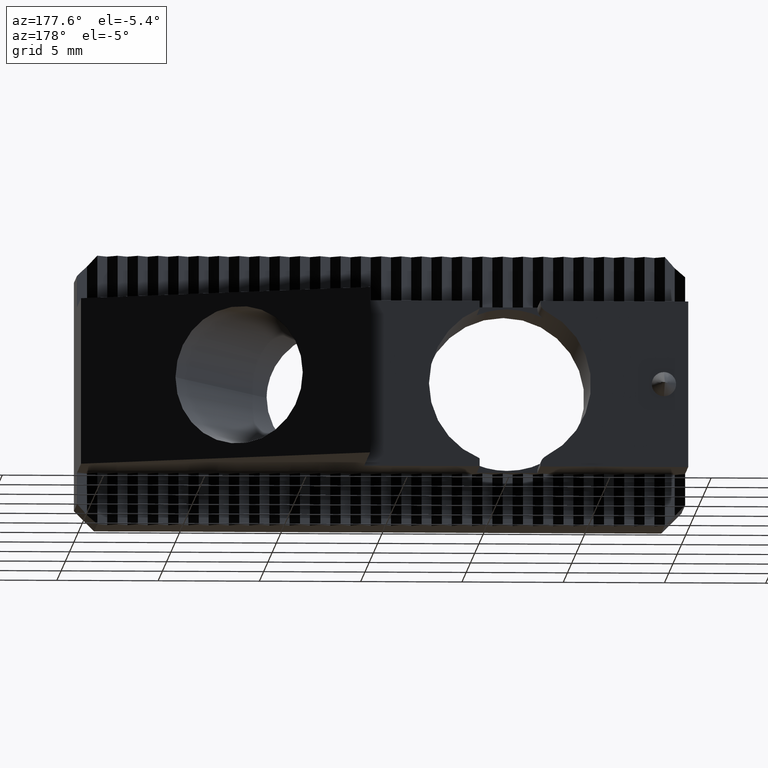
[diagram: clean part render]
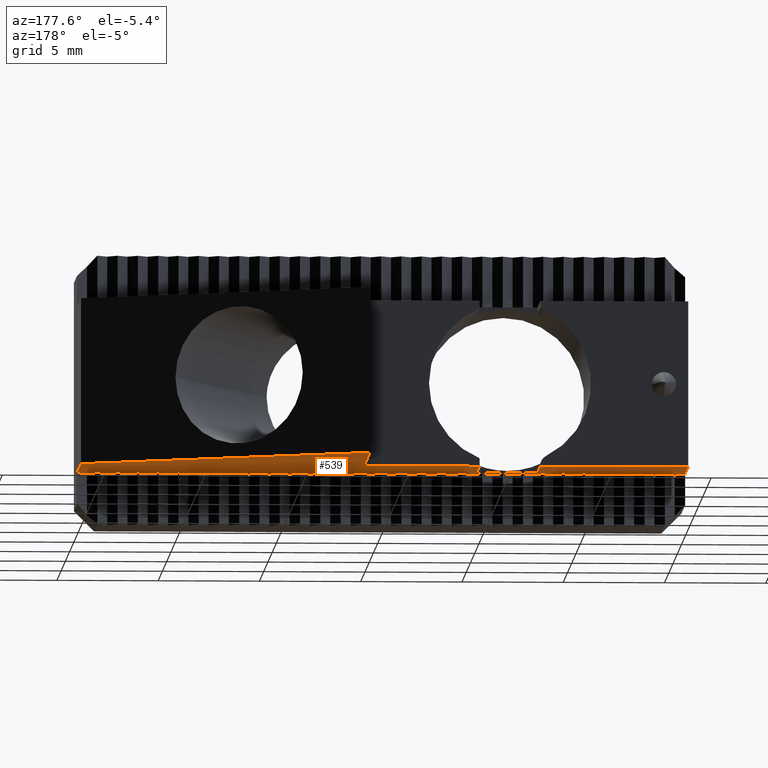
[diagram: same view with one face highlighted and labeled with its STEP entity id]
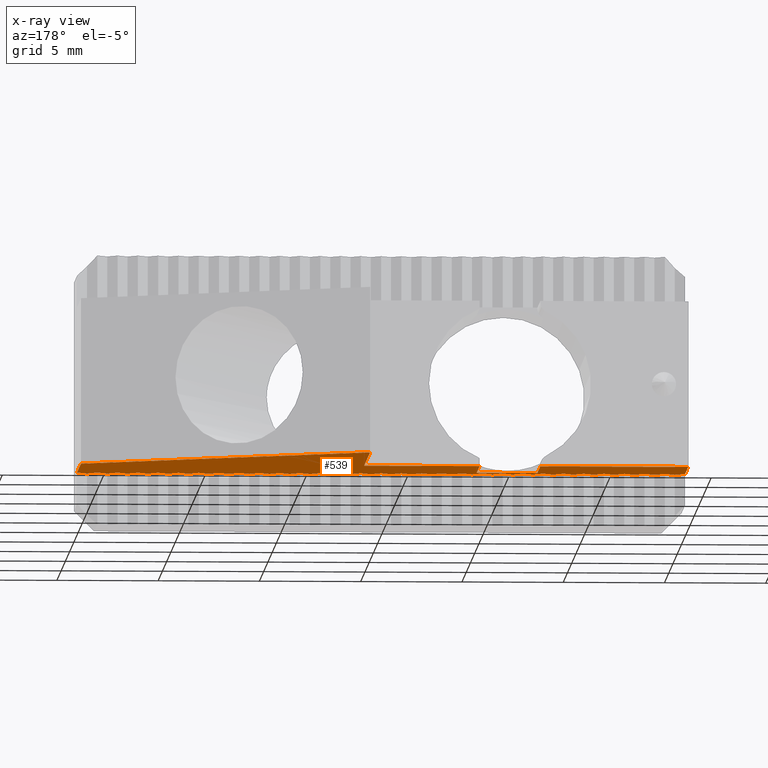
[diagram: x-ray of the same camera — body ghosted, the highlighted face saturated]
A machine part, auxiliary view. The second image highlights one B-rep face of the part: STEP entity #539.
The next image is the same camera in x-ray: the body ghosted, the highlighted face saturated — about 0% of this face is hidden behind the body in this view.
In plain terms, the highlighted planar face has unit normal (0, 0, 1).
Its self-contained STEP definition (entity closure, byte-faithful):
#51 = DIRECTION ( 'NONE',  ( -1.000000000000000000, -1.084202172485504400E-016, -0.0000000000000000000 ) ) ;
#52 = CARTESIAN_POINT ( 'NONE',  ( 16.00000000000000000, 8.000000000000001800, -4.100000000000001400 ) ) ;
#196 = VERTEX_POINT ( 'NONE', #351 ) ;
#197 = VERTEX_POINT ( 'NONE', #352 ) ;
#198 = VERTEX_POINT ( 'NONE', #356 ) ;
#223 = VERTEX_POINT ( 'NONE', #381 ) ;
#238 = VERTEX_POINT ( 'NONE', #396 ) ;
#249 = VERTEX_POINT ( 'NONE', #407 ) ;
#252 = VERTEX_POINT ( 'NONE', #410 ) ;
#253 = VERTEX_POINT ( 'NONE', #411 ) ;
#351 = CARTESIAN_POINT ( 'NONE',  ( 10.29999999999999700, 8.000000000000001800, -4.100000000000001400 ) ) ;
#352 = CARTESIAN_POINT ( 'NONE',  ( 16.00000000000000000, 15.00000000000000000, -4.100000000000001400 ) ) ;
#356 = CARTESIAN_POINT ( 'NONE',  ( 16.00000000000000000, 8.000000000000001800, -4.100000000000001400 ) ) ;
#381 = CARTESIAN_POINT ( 'NONE',  ( 7.299999999999998000, 8.000000000000000000, -4.100000000000001400 ) ) ;
#396 = CARTESIAN_POINT ( 'NONE',  ( 0.0000000000000000000, 8.000000000000000000, -4.100000000000001400 ) ) ;
#407 = CARTESIAN_POINT ( 'NONE',  ( 30.00000000000000000, 3.799999999999999800, -4.100000000000001400 ) ) ;
#410 = CARTESIAN_POINT ( 'NONE',  ( 30.00000000000000000, 8.471692785830127200, -4.100000000000001400 ) ) ;
#411 = CARTESIAN_POINT ( 'NONE',  ( 0.0000000000000000000, 4.299999999999999800, -4.100000000000001400 ) ) ;
#421 = EDGE_CURVE ( 'NONE', #223, #238, #2176, .T. ) ;
#539 = ADVANCED_FACE ( 'NONE', ( #2586 ), #3051, .F. ) ;
#605 = EDGE_LOOP ( 'NONE', ( #1193, #1194, #1195, #1196, #1197, #1198, #1199, #1200, #1201, #1202, #1203, #1204, #1205, #1206, #1207, #1208, #1209, #1210, #1211, #1212, #1213, #1214, #1215, #1216, #1217, #1218, #1219, #1220, #1221, #1222, #1223, #1224, #1225, #1226, #1227, #1228, #1229, #1230, #1231, #1232, #1233, #1234, #1235, #1236, #1237, #1238, #1239, #1240, #1241, #1242, #1243, #1244, #1245, #1246, #1247, #1248, #1249, #1250, #1251, #1252, #1253, #1254, #1255, #1256, #1257, #1258, #1259, #1260, #1261, #1262 ) ) ;
#699 = VERTEX_POINT ( 'NONE', #3257 ) ;
#709 = VERTEX_POINT ( 'NONE', #3267 ) ;
#769 = VERTEX_POINT ( 'NONE', #3327 ) ;
#771 = VERTEX_POINT ( 'NONE', #3329 ) ;
#774 = VERTEX_POINT ( 'NONE', #3332 ) ;
#775 = VERTEX_POINT ( 'NONE', #3333 ) ;
#776 = VERTEX_POINT ( 'NONE', #3334 ) ;
#777 = VERTEX_POINT ( 'NONE', #3335 ) ;
#778 = VERTEX_POINT ( 'NONE', #3336 ) ;
#779 = VERTEX_POINT ( 'NONE', #3337 ) ;
#780 = VERTEX_POINT ( 'NONE', #3338 ) ;
#781 = VERTEX_POINT ( 'NONE', #3339 ) ;
#782 = VERTEX_POINT ( 'NONE', #3340 ) ;
#783 = VERTEX_POINT ( 'NONE', #3341 ) ;
#784 = VERTEX_POINT ( 'NONE', #3342 ) ;
#785 = VERTEX_POINT ( 'NONE', #3343 ) ;
#786 = VERTEX_POINT ( 'NONE', #3344 ) ;
#787 = VERTEX_POINT ( 'NONE', #3345 ) ;
#788 = VERTEX_POINT ( 'NONE', #3346 ) ;
#789 = VERTEX_POINT ( 'NONE', #3347 ) ;
#790 = VERTEX_POINT ( 'NONE', #3348 ) ;
#791 = VERTEX_POINT ( 'NONE', #3349 ) ;
#792 = VERTEX_POINT ( 'NONE', #3350 ) ;
#793 = VERTEX_POINT ( 'NONE', #3351 ) ;
#794 = VERTEX_POINT ( 'NONE', #3352 ) ;
#795 = VERTEX_POINT ( 'NONE', #3353 ) ;
#796 = VERTEX_POINT ( 'NONE', #3354 ) ;
#797 = VERTEX_POINT ( 'NONE', #3355 ) ;
#798 = VERTEX_POINT ( 'NONE', #3356 ) ;
#799 = VERTEX_POINT ( 'NONE', #3357 ) ;
#800 = VERTEX_POINT ( 'NONE', #3358 ) ;
#801 = VERTEX_POINT ( 'NONE', #3359 ) ;
#802 = VERTEX_POINT ( 'NONE', #3360 ) ;
#803 = VERTEX_POINT ( 'NONE', #3361 ) ;
#804 = VERTEX_POINT ( 'NONE', #3362 ) ;
#805 = VERTEX_POINT ( 'NONE', #3363 ) ;
#806 = VERTEX_POINT ( 'NONE', #3364 ) ;
#807 = VERTEX_POINT ( 'NONE', #3365 ) ;
#808 = VERTEX_POINT ( 'NONE', #3366 ) ;
#809 = VERTEX_POINT ( 'NONE', #3367 ) ;
#810 = VERTEX_POINT ( 'NONE', #3368 ) ;
#811 = VERTEX_POINT ( 'NONE', #3369 ) ;
#812 = VERTEX_POINT ( 'NONE', #3370 ) ;
#813 = VERTEX_POINT ( 'NONE', #3371 ) ;
#814 = VERTEX_POINT ( 'NONE', #3372 ) ;
#815 = VERTEX_POINT ( 'NONE', #3373 ) ;
#816 = VERTEX_POINT ( 'NONE', #3374 ) ;
#817 = VERTEX_POINT ( 'NONE', #3375 ) ;
#818 = VERTEX_POINT ( 'NONE', #3376 ) ;
#819 = VERTEX_POINT ( 'NONE', #3377 ) ;
#820 = VERTEX_POINT ( 'NONE', #3378 ) ;
#821 = VERTEX_POINT ( 'NONE', #3379 ) ;
#822 = VERTEX_POINT ( 'NONE', #3380 ) ;
#823 = VERTEX_POINT ( 'NONE', #3381 ) ;
#824 = VERTEX_POINT ( 'NONE', #3382 ) ;
#825 = VERTEX_POINT ( 'NONE', #3383 ) ;
#826 = VERTEX_POINT ( 'NONE', #3384 ) ;
#827 = VERTEX_POINT ( 'NONE', #3385 ) ;
#834 = VERTEX_POINT ( 'NONE', #3392 ) ;
#835 = VERTEX_POINT ( 'NONE', #3393 ) ;
#836 = VERTEX_POINT ( 'NONE', #3394 ) ;
#837 = VERTEX_POINT ( 'NONE', #3395 ) ;
#889 = EDGE_CURVE ( 'NONE', #249, #252, #2645, .T. ) ;
#900 = EDGE_CURVE ( 'NONE', #238, #253, #2671, .T. ) ;
#969 = EDGE_CURVE ( 'NONE', #252, #197, #3732, .T. ) ;
#972 = EDGE_CURVE ( 'NONE', #197, #198, #3737, .T. ) ;
#975 = EDGE_CURVE ( 'NONE', #198, #196, #3743, .T. ) ;
#1193 = ORIENTED_EDGE ( 'NONE', *, *, #421, .F. ) ;
#1194 = ORIENTED_EDGE ( 'NONE', *, *, #1400, .F. ) ;
#1195 = ORIENTED_EDGE ( 'NONE', *, *, #1401, .F. ) ;
#1196 = ORIENTED_EDGE ( 'NONE', *, *, #1402, .T. ) ;
#1197 = ORIENTED_EDGE ( 'NONE', *, *, #975, .F. ) ;
#1198 = ORIENTED_EDGE ( 'NONE', *, *, #972, .F. ) ;
#1199 = ORIENTED_EDGE ( 'NONE', *, *, #969, .F. ) ;
#1200 = ORIENTED_EDGE ( 'NONE', *, *, #889, .F. ) ;
#1201 = ORIENTED_EDGE ( 'NONE', *, *, #1399, .F. ) ;
#1202 = ORIENTED_EDGE ( 'NONE', *, *, #1403, .T. ) ;
#1203 = ORIENTED_EDGE ( 'NONE', *, *, #1404, .T. ) ;
#1204 = ORIENTED_EDGE ( 'NONE', *, *, #1405, .T. ) ;
#1205 = ORIENTED_EDGE ( 'NONE', *, *, #1406, .T. ) ;
#1206 = ORIENTED_EDGE ( 'NONE', *, *, #1407, .T. ) ;
#1207 = ORIENTED_EDGE ( 'NONE', *, *, #1408, .T. ) ;
#1208 = ORIENTED_EDGE ( 'NONE', *, *, #1409, .T. ) ;
#1209 = ORIENTED_EDGE ( 'NONE', *, *, #1410, .T. ) ;
#1210 = ORIENTED_EDGE ( 'NONE', *, *, #1411, .T. ) ;
#1211 = ORIENTED_EDGE ( 'NONE', *, *, #1412, .T. ) ;
#1212 = ORIENTED_EDGE ( 'NONE', *, *, #1413, .T. ) ;
#1213 = ORIENTED_EDGE ( 'NONE', *, *, #1414, .T. ) ;
#1214 = ORIENTED_EDGE ( 'NONE', *, *, #1415, .T. ) ;
#1215 = ORIENTED_EDGE ( 'NONE', *, *, #1416, .T. ) ;
#1216 = ORIENTED_EDGE ( 'NONE', *, *, #1417, .T. ) ;
#1217 = ORIENTED_EDGE ( 'NONE', *, *, #1418, .T. ) ;
#1218 = ORIENTED_EDGE ( 'NONE', *, *, #1419, .T. ) ;
#1219 = ORIENTED_EDGE ( 'NONE', *, *, #1420, .T. ) ;
#1220 = ORIENTED_EDGE ( 'NONE', *, *, #1421, .T. ) ;
#1221 = ORIENTED_EDGE ( 'NONE', *, *, #1422, .T. ) ;
#1222 = ORIENTED_EDGE ( 'NONE', *, *, #1423, .T. ) ;
#1223 = ORIENTED_EDGE ( 'NONE', *, *, #1424, .T. ) ;
#1224 = ORIENTED_EDGE ( 'NONE', *, *, #1425, .T. ) ;
#1225 = ORIENTED_EDGE ( 'NONE', *, *, #1426, .T. ) ;
#1226 = ORIENTED_EDGE ( 'NONE', *, *, #1427, .T. ) ;
#1227 = ORIENTED_EDGE ( 'NONE', *, *, #1428, .T. ) ;
#1228 = ORIENTED_EDGE ( 'NONE', *, *, #1429, .T. ) ;
#1229 = ORIENTED_EDGE ( 'NONE', *, *, #1430, .T. ) ;
#1230 = ORIENTED_EDGE ( 'NONE', *, *, #1431, .T. ) ;
#1231 = ORIENTED_EDGE ( 'NONE', *, *, #1432, .T. ) ;
#1232 = ORIENTED_EDGE ( 'NONE', *, *, #1433, .T. ) ;
#1233 = ORIENTED_EDGE ( 'NONE', *, *, #1434, .T. ) ;
#1234 = ORIENTED_EDGE ( 'NONE', *, *, #1435, .T. ) ;
#1235 = ORIENTED_EDGE ( 'NONE', *, *, #1436, .T. ) ;
#1236 = ORIENTED_EDGE ( 'NONE', *, *, #1437, .T. ) ;
#1237 = ORIENTED_EDGE ( 'NONE', *, *, #1438, .T. ) ;
#1238 = ORIENTED_EDGE ( 'NONE', *, *, #1439, .T. ) ;
#1239 = ORIENTED_EDGE ( 'NONE', *, *, #1440, .T. ) ;
#1240 = ORIENTED_EDGE ( 'NONE', *, *, #1441, .T. ) ;
#1241 = ORIENTED_EDGE ( 'NONE', *, *, #1442, .T. ) ;
#1242 = ORIENTED_EDGE ( 'NONE', *, *, #1443, .T. ) ;
#1243 = ORIENTED_EDGE ( 'NONE', *, *, #1444, .T. ) ;
#1244 = ORIENTED_EDGE ( 'NONE', *, *, #1445, .T. ) ;
#1245 = ORIENTED_EDGE ( 'NONE', *, *, #1446, .T. ) ;
#1246 = ORIENTED_EDGE ( 'NONE', *, *, #1447, .T. ) ;
#1247 = ORIENTED_EDGE ( 'NONE', *, *, #1448, .T. ) ;
#1248 = ORIENTED_EDGE ( 'NONE', *, *, #1449, .T. ) ;
#1249 = ORIENTED_EDGE ( 'NONE', *, *, #1450, .T. ) ;
#1250 = ORIENTED_EDGE ( 'NONE', *, *, #1451, .T. ) ;
#1251 = ORIENTED_EDGE ( 'NONE', *, *, #1452, .T. ) ;
#1252 = ORIENTED_EDGE ( 'NONE', *, *, #1453, .T. ) ;
#1253 = ORIENTED_EDGE ( 'NONE', *, *, #1454, .T. ) ;
#1254 = ORIENTED_EDGE ( 'NONE', *, *, #1455, .T. ) ;
#1255 = ORIENTED_EDGE ( 'NONE', *, *, #1456, .T. ) ;
#1256 = ORIENTED_EDGE ( 'NONE', *, *, #1457, .T. ) ;
#1257 = ORIENTED_EDGE ( 'NONE', *, *, #1458, .T. ) ;
#1258 = ORIENTED_EDGE ( 'NONE', *, *, #1459, .T. ) ;
#1259 = ORIENTED_EDGE ( 'NONE', *, *, #1460, .T. ) ;
#1260 = ORIENTED_EDGE ( 'NONE', *, *, #1461, .T. ) ;
#1261 = ORIENTED_EDGE ( 'NONE', *, *, #1462, .T. ) ;
#1262 = ORIENTED_EDGE ( 'NONE', *, *, #900, .F. ) ;
#1399 = EDGE_CURVE ( 'NONE', #709, #249, #4459, .T. ) ;
#1400 = EDGE_CURVE ( 'NONE', #699, #223, #4462, .T. ) ;
#1401 = EDGE_CURVE ( 'NONE', #771, #699, #4461, .T. ) ;
#1402 = EDGE_CURVE ( 'NONE', #771, #196, #4464, .T. ) ;
#1403 = EDGE_CURVE ( 'NONE', #709, #769, #4469, .T. ) ;
#1404 = EDGE_CURVE ( 'NONE', #769, #774, #4468, .T. ) ;
#1405 = EDGE_CURVE ( 'NONE', #774, #775, #4471, .T. ) ;
#1406 = EDGE_CURVE ( 'NONE', #775, #776, #4473, .T. ) ;
#1407 = EDGE_CURVE ( 'NONE', #776, #777, #4475, .T. ) ;
#1408 = EDGE_CURVE ( 'NONE', #777, #778, #4477, .T. ) ;
#1409 = EDGE_CURVE ( 'NONE', #778, #779, #4479, .T. ) ;
#1410 = EDGE_CURVE ( 'NONE', #779, #780, #4481, .T. ) ;
#1411 = EDGE_CURVE ( 'NONE', #780, #781, #4483, .T. ) ;
#1412 = EDGE_CURVE ( 'NONE', #781, #782, #4485, .T. ) ;
#1413 = EDGE_CURVE ( 'NONE', #782, #783, #4487, .T. ) ;
#1414 = EDGE_CURVE ( 'NONE', #783, #784, #4489, .T. ) ;
#1415 = EDGE_CURVE ( 'NONE', #784, #785, #4491, .T. ) ;
#1416 = EDGE_CURVE ( 'NONE', #785, #786, #4493, .T. ) ;
#1417 = EDGE_CURVE ( 'NONE', #786, #787, #4495, .T. ) ;
#1418 = EDGE_CURVE ( 'NONE', #787, #788, #4497, .T. ) ;
#1419 = EDGE_CURVE ( 'NONE', #788, #789, #4499, .T. ) ;
#1420 = EDGE_CURVE ( 'NONE', #789, #790, #4501, .T. ) ;
#1421 = EDGE_CURVE ( 'NONE', #790, #791, #4503, .T. ) ;
#1422 = EDGE_CURVE ( 'NONE', #791, #792, #4505, .T. ) ;
#1423 = EDGE_CURVE ( 'NONE', #792, #793, #4507, .T. ) ;
#1424 = EDGE_CURVE ( 'NONE', #793, #794, #4509, .T. ) ;
#1425 = EDGE_CURVE ( 'NONE', #794, #795, #4511, .T. ) ;
#1426 = EDGE_CURVE ( 'NONE', #795, #796, #4513, .T. ) ;
#1427 = EDGE_CURVE ( 'NONE', #796, #797, #4515, .T. ) ;
#1428 = EDGE_CURVE ( 'NONE', #797, #835, #4517, .T. ) ;
#1429 = EDGE_CURVE ( 'NONE', #835, #834, #4519, .T. ) ;
#1430 = EDGE_CURVE ( 'NONE', #834, #798, #4521, .T. ) ;
#1431 = EDGE_CURVE ( 'NONE', #798, #799, #4523, .T. ) ;
#1432 = EDGE_CURVE ( 'NONE', #799, #837, #4525, .T. ) ;
#1433 = EDGE_CURVE ( 'NONE', #837, #836, #4527, .T. ) ;
#1434 = EDGE_CURVE ( 'NONE', #836, #800, #4529, .T. ) ;
#1435 = EDGE_CURVE ( 'NONE', #800, #801, #4531, .T. ) ;
#1436 = EDGE_CURVE ( 'NONE', #801, #802, #4533, .T. ) ;
#1437 = EDGE_CURVE ( 'NONE', #802, #803, #4535, .T. ) ;
#1438 = EDGE_CURVE ( 'NONE', #803, #804, #4537, .T. ) ;
#1439 = EDGE_CURVE ( 'NONE', #804, #805, #4539, .T. ) ;
#1440 = EDGE_CURVE ( 'NONE', #805, #806, #4541, .T. ) ;
#1441 = EDGE_CURVE ( 'NONE', #806, #807, #4543, .T. ) ;
#1442 = EDGE_CURVE ( 'NONE', #807, #808, #4545, .T. ) ;
#1443 = EDGE_CURVE ( 'NONE', #808, #809, #4547, .T. ) ;
#1444 = EDGE_CURVE ( 'NONE', #809, #810, #4549, .T. ) ;
#1445 = EDGE_CURVE ( 'NONE', #810, #811, #4551, .T. ) ;
#1446 = EDGE_CURVE ( 'NONE', #811, #812, #4553, .T. ) ;
#1447 = EDGE_CURVE ( 'NONE', #812, #813, #4555, .T. ) ;
#1448 = EDGE_CURVE ( 'NONE', #813, #814, #4557, .T. ) ;
#1449 = EDGE_CURVE ( 'NONE', #814, #815, #4559, .T. ) ;
#1450 = EDGE_CURVE ( 'NONE', #815, #816, #4561, .T. ) ;
#1451 = EDGE_CURVE ( 'NONE', #816, #817, #4563, .T. ) ;
#1452 = EDGE_CURVE ( 'NONE', #817, #818, #4565, .T. ) ;
#1453 = EDGE_CURVE ( 'NONE', #818, #819, #4567, .T. ) ;
#1454 = EDGE_CURVE ( 'NONE', #819, #820, #4569, .T. ) ;
#1455 = EDGE_CURVE ( 'NONE', #820, #821, #4571, .T. ) ;
#1456 = EDGE_CURVE ( 'NONE', #821, #822, #4573, .T. ) ;
#1457 = EDGE_CURVE ( 'NONE', #822, #823, #4575, .T. ) ;
#1458 = EDGE_CURVE ( 'NONE', #823, #824, #4577, .T. ) ;
#1459 = EDGE_CURVE ( 'NONE', #824, #825, #4579, .T. ) ;
#1460 = EDGE_CURVE ( 'NONE', #825, #826, #4581, .T. ) ;
#1461 = EDGE_CURVE ( 'NONE', #826, #827, #4583, .T. ) ;
#1462 = EDGE_CURVE ( 'NONE', #827, #253, #4585, .T. ) ;
#2176 = LINE ( 'NONE', #52, #2181 ) ;
#2181 = VECTOR ( 'NONE', #51, 1000.000000000000000 ) ;
#2586 = FACE_OUTER_BOUND ( 'NONE', #605, .T. ) ;
#2645 = LINE ( 'NONE', #3413, #2652 ) ;
#2652 = VECTOR ( 'NONE', #3423, 1000.000000000000000 ) ;
#2671 = LINE ( 'NONE', #3444, #2674 ) ;
#2674 = VECTOR ( 'NONE', #3445, 1000.000000000000000 ) ;
#2858 = AXIS2_PLACEMENT_3D ( 'NONE', #3044, #3053, #3054 ) ;
#3044 = CARTESIAN_POINT ( 'NONE',  ( 0.0000000000000000000, 8.000000000000000000, -4.100000000000001400 ) ) ;
#3051 = PLANE ( 'NONE',  #2858 ) ;
#3053 = DIRECTION ( 'NONE',  ( 0.0000000000000000000, 0.0000000000000000000, 1.000000000000000000 ) ) ;
#3054 = DIRECTION ( 'NONE',  ( -1.000000000000000000, 0.0000000000000000000, 0.0000000000000000000 ) ) ;
#3257 = CARTESIAN_POINT ( 'NONE',  ( 7.299999999999998000, 4.500000000000000900, -4.100000000000001400 ) ) ;
#3267 = CARTESIAN_POINT ( 'NONE',  ( 29.99597306114840500, 3.800067115647943100, -4.100000000000001400 ) ) ;
#3327 = CARTESIAN_POINT ( 'NONE',  ( 29.48763972781507200, 3.308400448981275100, -4.100000000000001400 ) ) ;
#3329 = CARTESIAN_POINT ( 'NONE',  ( 10.29999999999999700, 4.500000000000002700, -4.100000000000001400 ) ) ;
#3332 = CARTESIAN_POINT ( 'NONE',  ( 28.99604133396227500, 3.816663195168066300, -4.100000000000001400 ) ) ;
#3333 = CARTESIAN_POINT ( 'NONE',  ( 28.48777858777547300, 3.325064801315253900, -4.100000000000001400 ) ) ;
#3334 = CARTESIAN_POINT ( 'NONE',  ( 27.99618019392267600, 3.833327547502047800, -4.100000000000001400 ) ) ;
#3335 = CARTESIAN_POINT ( 'NONE',  ( 27.48791744773587100, 3.341729153649232800, -4.100000000000001400 ) ) ;
#3336 = CARTESIAN_POINT ( 'NONE',  ( 26.99631905388307700, 3.849991899836023200, -4.100000000000001400 ) ) ;
#3337 = CARTESIAN_POINT ( 'NONE',  ( 26.48805630769627600, 3.358393505983211700, -4.100000000000001400 ) ) ;
#3338 = CARTESIAN_POINT ( 'NONE',  ( 25.99645791384347900, 3.866656252170005600, -4.100000000000001400 ) ) ;
#3339 = CARTESIAN_POINT ( 'NONE',  ( 25.48819516765667000, 3.375057858317191100, -4.100000000000001400 ) ) ;
#3340 = CARTESIAN_POINT ( 'NONE',  ( 24.99659677380387300, 3.883320604503981900, -4.100000000000001400 ) ) ;
#3341 = CARTESIAN_POINT ( 'NONE',  ( 24.48833402761707100, 3.391722210651170000, -4.100000000000001400 ) ) ;
#3342 = CARTESIAN_POINT ( 'NONE',  ( 23.99673563376427400, 3.899984956837963400, -4.100000000000001400 ) ) ;
#3343 = CARTESIAN_POINT ( 'NONE',  ( 23.48847288757746900, 3.408386562985148900, -4.100000000000001400 ) ) ;
#3344 = CARTESIAN_POINT ( 'NONE',  ( 22.99687449372467200, 3.916649309171942800, -4.100000000000001400 ) ) ;
#3345 = CARTESIAN_POINT ( 'NONE',  ( 22.48861174753786700, 3.425050915319128200, -4.100000000000001400 ) ) ;
#3346 = CARTESIAN_POINT ( 'NONE',  ( 21.99701335368507300, 3.933313661505918500, -4.100000000000001400 ) ) ;
#3347 = CARTESIAN_POINT ( 'NONE',  ( 21.48875060749827200, 3.441715267653106600, -4.100000000000001400 ) ) ;
#3348 = CARTESIAN_POINT ( 'NONE',  ( 20.99715221364547400, 3.949978013839900500, -4.100000000000001400 ) ) ;
#3349 = CARTESIAN_POINT ( 'NONE',  ( 20.48888946745866900, 3.458379619987085500, -4.100000000000001400 ) ) ;
#3350 = CARTESIAN_POINT ( 'NONE',  ( 19.99729107360587200, 3.966642366173877200, -4.100000000000001400 ) ) ;
#3351 = CARTESIAN_POINT ( 'NONE',  ( 19.48902832741907100, 3.475043972321064900, -4.100000000000001400 ) ) ;
#3352 = CARTESIAN_POINT ( 'NONE',  ( 18.99742993356627400, 3.983306718507856600, -4.100000000000001400 ) ) ;
#3353 = CARTESIAN_POINT ( 'NONE',  ( 18.48916718737947200, 3.491708324655043800, -4.100000000000001400 ) ) ;
#3354 = CARTESIAN_POINT ( 'NONE',  ( 17.99756879352667500, 3.999971070841834600, -4.100000000000001400 ) ) ;
#3355 = CARTESIAN_POINT ( 'NONE',  ( 17.48930604733987000, 3.508372676989022700, -4.100000000000001400 ) ) ;
#3356 = CARTESIAN_POINT ( 'NONE',  ( 15.99784651344747200, 4.033299775509792800, -4.100000000000001400 ) ) ;
#3357 = CARTESIAN_POINT ( 'NONE',  ( 15.48958376726066900, 3.541701381656982700, -4.100000000000001400 ) ) ;
#3358 = CARTESIAN_POINT ( 'NONE',  ( 13.99812423336827300, 4.066628480177750600, -4.100000000000001400 ) ) ;
#3359 = CARTESIAN_POINT ( 'NONE',  ( 13.48986148718147100, 3.575030086324940500, -4.100000000000001400 ) ) ;
#3360 = CARTESIAN_POINT ( 'NONE',  ( 12.99826309332867400, 4.083292832511729900, -4.100000000000001400 ) ) ;
#3361 = CARTESIAN_POINT ( 'NONE',  ( 12.49000034714187100, 3.591694438658919400, -4.100000000000001400 ) ) ;
#3362 = CARTESIAN_POINT ( 'NONE',  ( 11.99840195328907200, 4.099957184845710100, -4.100000000000001400 ) ) ;
#3363 = CARTESIAN_POINT ( 'NONE',  ( 11.49013920710226700, 3.608358790992898200, -4.100000000000001400 ) ) ;
#3364 = CARTESIAN_POINT ( 'NONE',  ( 10.99854081324947000, 4.116621537179687700, -4.100000000000001400 ) ) ;
#3365 = CARTESIAN_POINT ( 'NONE',  ( 10.49027806706266800, 3.625023143326877600, -4.100000000000001400 ) ) ;
#3366 = CARTESIAN_POINT ( 'NONE',  ( 9.998679673209871100, 4.133285889513666200, -4.100000000000001400 ) ) ;
#3367 = CARTESIAN_POINT ( 'NONE',  ( 9.490416927023069600, 3.641687495660856500, -4.100000000000001400 ) ) ;
#3368 = CARTESIAN_POINT ( 'NONE',  ( 8.998818533170272400, 4.149950241847646400, -4.100000000000001400 ) ) ;
#3369 = CARTESIAN_POINT ( 'NONE',  ( 8.490555786983469100, 3.658351847994835400, -4.100000000000001400 ) ) ;
#3370 = CARTESIAN_POINT ( 'NONE',  ( 7.998957393130671000, 4.166614594181625700, -4.100000000000001400 ) ) ;
#3371 = CARTESIAN_POINT ( 'NONE',  ( 7.490694646943867800, 3.675016200328814300, -4.100000000000001400 ) ) ;
#3372 = CARTESIAN_POINT ( 'NONE',  ( 6.999096253091071400, 4.183278946515604200, -4.100000000000001400 ) ) ;
#3373 = CARTESIAN_POINT ( 'NONE',  ( 6.490833506904267300, 3.691680552662793200, -4.100000000000001400 ) ) ;
#3374 = CARTESIAN_POINT ( 'NONE',  ( 5.999235113051470100, 4.199943298849583500, -4.100000000000001400 ) ) ;
#3375 = CARTESIAN_POINT ( 'NONE',  ( 5.490972366864666800, 3.708344904996772100, -4.100000000000001400 ) ) ;
#3376 = CARTESIAN_POINT ( 'NONE',  ( 4.999373973011870500, 4.216607651183562800, -4.100000000000001400 ) ) ;
#3377 = CARTESIAN_POINT ( 'NONE',  ( 4.491111226825066400, 3.725009257330751400, -4.100000000000001400 ) ) ;
#3378 = CARTESIAN_POINT ( 'NONE',  ( 3.999512832972270400, 4.233272003517542200, -4.100000000000001400 ) ) ;
#3379 = CARTESIAN_POINT ( 'NONE',  ( 3.491250086785466300, 3.741673609664729800, -4.100000000000001400 ) ) ;
#3380 = CARTESIAN_POINT ( 'NONE',  ( 2.999651692932670400, 4.249936355851520600, -4.100000000000001400 ) ) ;
#3381 = CARTESIAN_POINT ( 'NONE',  ( 2.491388946745866300, 3.758337961998708700, -4.100000000000001400 ) ) ;
#3382 = CARTESIAN_POINT ( 'NONE',  ( 1.999790552893070000, 4.266600708185500000, -4.100000000000001400 ) ) ;
#3383 = CARTESIAN_POINT ( 'NONE',  ( 1.491527806706265800, 3.775002314332688100, -4.100000000000001400 ) ) ;
#3384 = CARTESIAN_POINT ( 'NONE',  ( 0.9999294128534693700, 4.283265060519477500, -4.100000000000001400 ) ) ;
#3385 = CARTESIAN_POINT ( 'NONE',  ( 0.4916666666666656400, 3.791666666666666500, -4.100000000000001400 ) ) ;
#3392 = CARTESIAN_POINT ( 'NONE',  ( 16.48944490730026800, 3.525037029323002000, -4.100000000000001400 ) ) ;
#3393 = CARTESIAN_POINT ( 'NONE',  ( 16.99770765348707300, 4.016635423175817000, -4.100000000000001400 ) ) ;
#3394 = CARTESIAN_POINT ( 'NONE',  ( 14.48972262722107000, 3.558365733990961100, -4.100000000000001400 ) ) ;
#3395 = CARTESIAN_POINT ( 'NONE',  ( 14.99798537340787200, 4.049964127843771200, -4.100000000000001400 ) ) ;
#3413 = CARTESIAN_POINT ( 'NONE',  ( 30.00000000000000000, 3.799999999999999800, -4.100000000000001400 ) ) ;
#3423 = DIRECTION ( 'NONE',  ( 0.0000000000000000000, 1.000000000000000000, 0.0000000000000000000 ) ) ;
#3444 = CARTESIAN_POINT ( 'NONE',  ( 0.0000000000000000000, 8.000000000000000000, -4.100000000000001400 ) ) ;
#3445 = DIRECTION ( 'NONE',  ( 0.0000000000000000000, -1.000000000000000000, 0.0000000000000000000 ) ) ;
#3570 = DIRECTION ( 'NONE',  ( -0.9063077870366526000, 0.4226182617406936700, 0.0000000000000000000 ) ) ;
#3580 = CARTESIAN_POINT ( 'NONE',  ( 30.00000000000000000, 8.471692785830127200, -4.100000000000001400 ) ) ;
#3591 = CARTESIAN_POINT ( 'NONE',  ( 16.00000000000000000, 15.00000000000000000, -4.100000000000001400 ) ) ;
#3592 = DIRECTION ( 'NONE',  ( 0.0000000000000000000, -1.000000000000000000, 0.0000000000000000000 ) ) ;
#3597 = CARTESIAN_POINT ( 'NONE',  ( 16.00000000000000000, 8.000000000000001800, -4.100000000000001400 ) ) ;
#3598 = DIRECTION ( 'NONE',  ( -1.000000000000000000, -1.084202172485504400E-016, -0.0000000000000000000 ) ) ;
#3732 = LINE ( 'NONE', #3580, #3734 ) ;
#3734 = VECTOR ( 'NONE', #3570, 1000.000000000000100 ) ;
#3737 = LINE ( 'NONE', #3591, #3740 ) ;
#3740 = VECTOR ( 'NONE', #3592, 1000.000000000000000 ) ;
#3743 = LINE ( 'NONE', #3597, #3746 ) ;
#3746 = VECTOR ( 'NONE', #3598, 1000.000000000000000 ) ;
#4016 = CARTESIAN_POINT ( 'NONE',  ( 0.0000000000000000000, 4.299999999999999800, -4.100000000000001400 ) ) ;
#4018 = CARTESIAN_POINT ( 'NONE',  ( 29.48763972781507200, 3.308400448981276400, -4.100000000000001400 ) ) ;
#4153 = DIRECTION ( 'NONE',  ( 0.9998611400395999200, -0.01666435233399333000, 0.0000000000000000000 ) ) ;
#4154 = CARTESIAN_POINT ( 'NONE',  ( 7.299999999999998000, 4.500000000000000900, -4.100000000000001400 ) ) ;
#4155 = DIRECTION ( 'NONE',  ( -1.084202172485504400E-016, 1.000000000000000000, -0.0000000000000000000 ) ) ;
#4156 = CARTESIAN_POINT ( 'NONE',  ( 10.29999999999999700, 4.500000000000002700, -4.100000000000001400 ) ) ;
#4157 = DIRECTION ( 'NONE',  ( -1.000000000000000000, -5.782411586589360600E-016, 0.0000000000000000000 ) ) ;
#4158 = CARTESIAN_POINT ( 'NONE',  ( 10.29999999999999700, 4.500000000000002700, -4.100000000000001400 ) ) ;
#4160 = DIRECTION ( 'NONE',  ( -1.084202172485504400E-016, 1.000000000000000000, -0.0000000000000000000 ) ) ;
#4161 = DIRECTION ( 'NONE',  ( -0.7187920689063608300, -0.6952251158274658200, 0.0000000000000000000 ) ) ;
#4162 = CARTESIAN_POINT ( 'NONE',  ( 28.99597306114840800, 3.816733782314609200, -4.100000000000001400 ) ) ;
#4163 = DIRECTION ( 'NONE',  ( -0.6952251158274641600, 0.7187920689063626000, 0.0000000000000000000 ) ) ;
#4164 = CARTESIAN_POINT ( 'NONE',  ( 28.48777858777547300, 3.325064801315255300, -4.100000000000001400 ) ) ;
#4165 = DIRECTION ( 'NONE',  ( -0.7187920689063608300, -0.6952251158274658200, 0.0000000000000000000 ) ) ;
#4166 = CARTESIAN_POINT ( 'NONE',  ( 27.99611192110881000, 3.833398134648588600, -4.100000000000001400 ) ) ;
#4167 = DIRECTION ( 'NONE',  ( -0.6952251158274641600, 0.7187920689063626000, 0.0000000000000000000 ) ) ;
#4168 = CARTESIAN_POINT ( 'NONE',  ( 27.48791744773587100, 3.341729153649234200, -4.100000000000001400 ) ) ;
#4169 = DIRECTION ( 'NONE',  ( -0.7187920689063608300, -0.6952251158274658200, 0.0000000000000000000 ) ) ;
#4170 = CARTESIAN_POINT ( 'NONE',  ( 26.99625078106920400, 3.850062486982567500, -4.100000000000001400 ) ) ;
#4171 = DIRECTION ( 'NONE',  ( -0.6952251158274641600, 0.7187920689063626000, 0.0000000000000000000 ) ) ;
#4172 = CARTESIAN_POINT ( 'NONE',  ( 26.48805630769627600, 3.358393505983213100, -4.100000000000001400 ) ) ;
#4173 = DIRECTION ( 'NONE',  ( -0.7187920689063608300, -0.6952251158274658200, 0.0000000000000000000 ) ) ;
#4174 = CARTESIAN_POINT ( 'NONE',  ( 25.99638964102960900, 3.866726839316546400, -4.100000000000001400 ) ) ;
#4175 = DIRECTION ( 'NONE',  ( -0.6952251158274641600, 0.7187920689063626000, 0.0000000000000000000 ) ) ;
#4176 = CARTESIAN_POINT ( 'NONE',  ( 25.48819516765667000, 3.375057858317192400, -4.100000000000001400 ) ) ;
#4177 = DIRECTION ( 'NONE',  ( -0.7187920689063608300, -0.6952251158274658200, 0.0000000000000000000 ) ) ;
#4178 = CARTESIAN_POINT ( 'NONE',  ( 24.99652850099000600, 3.883391191650525300, -4.100000000000001400 ) ) ;
#4179 = DIRECTION ( 'NONE',  ( -0.6952251158274641600, 0.7187920689063626000, 0.0000000000000000000 ) ) ;
#4180 = CARTESIAN_POINT ( 'NONE',  ( 24.48833402761707100, 3.391722210651171300, -4.100000000000001400 ) ) ;
#4181 = DIRECTION ( 'NONE',  ( -0.7187920689063608300, -0.6952251158274658200, 0.0000000000000000000 ) ) ;
#4182 = CARTESIAN_POINT ( 'NONE',  ( 23.99666736095040800, 3.900055543984504600, -4.100000000000001400 ) ) ;
#4183 = DIRECTION ( 'NONE',  ( -0.6952251158274641600, 0.7187920689063626000, 0.0000000000000000000 ) ) ;
#4184 = CARTESIAN_POINT ( 'NONE',  ( 23.48847288757746900, 3.408386562985150200, -4.100000000000001400 ) ) ;
#4185 = DIRECTION ( 'NONE',  ( -0.7187920689063608300, -0.6952251158274658200, 0.0000000000000000000 ) ) ;
#4186 = CARTESIAN_POINT ( 'NONE',  ( 22.99680622091080600, 3.916719896318483900, -4.100000000000001400 ) ) ;
#4187 = DIRECTION ( 'NONE',  ( -0.6952251158274641600, 0.7187920689063626000, 0.0000000000000000000 ) ) ;
#4188 = CARTESIAN_POINT ( 'NONE',  ( 22.48861174753786700, 3.425050915319129500, -4.100000000000001400 ) ) ;
#4189 = DIRECTION ( 'NONE',  ( -0.7187920689063608300, -0.6952251158274658200, 0.0000000000000000000 ) ) ;
#4190 = CARTESIAN_POINT ( 'NONE',  ( 21.99694508087120300, 3.933384248652462400, -4.100000000000001400 ) ) ;
#4191 = DIRECTION ( 'NONE',  ( -0.6952251158274641600, 0.7187920689063626000, 0.0000000000000000000 ) ) ;
#4192 = CARTESIAN_POINT ( 'NONE',  ( 21.48875060749827200, 3.441715267653108000, -4.100000000000001400 ) ) ;
#4193 = DIRECTION ( 'NONE',  ( -0.7187920689063608300, -0.6952251158274658200, 0.0000000000000000000 ) ) ;
#4194 = CARTESIAN_POINT ( 'NONE',  ( 20.99708394083160800, 3.950048600986441300, -4.100000000000001400 ) ) ;
#4195 = DIRECTION ( 'NONE',  ( -0.6952251158274641600, 0.7187920689063626000, 0.0000000000000000000 ) ) ;
#4196 = CARTESIAN_POINT ( 'NONE',  ( 20.48888946745866900, 3.458379619987086900, -4.100000000000001400 ) ) ;
#4197 = DIRECTION ( 'NONE',  ( -0.7187920689063608300, -0.6952251158274658200, 0.0000000000000000000 ) ) ;
#4198 = CARTESIAN_POINT ( 'NONE',  ( 19.99722280079200600, 3.966712953320420600, -4.100000000000001400 ) ) ;
#4199 = DIRECTION ( 'NONE',  ( -0.6952251158274641600, 0.7187920689063626000, 0.0000000000000000000 ) ) ;
#4200 = CARTESIAN_POINT ( 'NONE',  ( 19.48902832741907100, 3.475043972321066200, -4.100000000000001400 ) ) ;
#4201 = DIRECTION ( 'NONE',  ( -0.7187920689063608300, -0.6952251158274658200, 0.0000000000000000000 ) ) ;
#4202 = CARTESIAN_POINT ( 'NONE',  ( 18.99736166075240400, 3.983377305654399100, -4.100000000000001400 ) ) ;
#4203 = DIRECTION ( 'NONE',  ( -0.6952251158274641600, 0.7187920689063626000, 0.0000000000000000000 ) ) ;
#4204 = CARTESIAN_POINT ( 'NONE',  ( 18.48916718737947200, 3.491708324655045100, -4.100000000000001400 ) ) ;
#4205 = DIRECTION ( 'NONE',  ( -0.7187920689063608300, -0.6952251158274658200, 0.0000000000000000000 ) ) ;
#4206 = CARTESIAN_POINT ( 'NONE',  ( 17.99750052071280500, 4.000041657988378000, -4.100000000000001400 ) ) ;
#4207 = DIRECTION ( 'NONE',  ( -0.6952251158274641600, 0.7187920689063626000, 0.0000000000000000000 ) ) ;
#4208 = CARTESIAN_POINT ( 'NONE',  ( 17.48930604733987000, 3.508372676989024000, -4.100000000000001400 ) ) ;
#4209 = DIRECTION ( 'NONE',  ( -0.7187920689063608300, -0.6952251158274658200, 0.0000000000000000000 ) ) ;
#4210 = CARTESIAN_POINT ( 'NONE',  ( 16.99763938067320600, 4.016706010322357300, -4.100000000000001400 ) ) ;
#4211 = DIRECTION ( 'NONE',  ( -0.6952251158274641600, 0.7187920689063626000, 0.0000000000000000000 ) ) ;
#4212 = CARTESIAN_POINT ( 'NONE',  ( 16.48944490730026800, 3.525037029323003300, -4.100000000000001400 ) ) ;
#4213 = DIRECTION ( 'NONE',  ( -0.7187920689063608300, -0.6952251158274658200, 0.0000000000000000000 ) ) ;
#4214 = CARTESIAN_POINT ( 'NONE',  ( 15.99777824063360400, 4.033370362656335800, -4.100000000000001400 ) ) ;
#4215 = DIRECTION ( 'NONE',  ( -0.6952251158274641600, 0.7187920689063626000, 0.0000000000000000000 ) ) ;
#4216 = CARTESIAN_POINT ( 'NONE',  ( 15.48958376726066900, 3.541701381656982200, -4.100000000000001400 ) ) ;
#4217 = DIRECTION ( 'NONE',  ( -0.7187920689063609400, -0.6952251158274658200, 0.0000000000000000000 ) ) ;
#4218 = CARTESIAN_POINT ( 'NONE',  ( 14.99791710059400400, 4.050034714990315100, -4.100000000000001400 ) ) ;
#4219 = DIRECTION ( 'NONE',  ( -0.6952251158274640500, 0.7187920689063626000, 0.0000000000000000000 ) ) ;
#4220 = CARTESIAN_POINT ( 'NONE',  ( 14.48972262722107000, 3.558365733990960700, -4.100000000000001400 ) ) ;
#4221 = DIRECTION ( 'NONE',  ( -0.7187920689063608300, -0.6952251158274658200, 0.0000000000000000000 ) ) ;
#4222 = CARTESIAN_POINT ( 'NONE',  ( 13.99805596055440500, 4.066699067324294400, -4.100000000000001400 ) ) ;
#4223 = DIRECTION ( 'NONE',  ( -0.6952251158274641600, 0.7187920689063626000, 0.0000000000000000000 ) ) ;
#4224 = CARTESIAN_POINT ( 'NONE',  ( 13.48986148718147100, 3.575030086324940000, -4.100000000000001400 ) ) ;
#4225 = DIRECTION ( 'NONE',  ( -0.7187920689063608300, -0.6952251158274658200, 0.0000000000000000000 ) ) ;
#4226 = CARTESIAN_POINT ( 'NONE',  ( 12.99819482051480400, 4.083363419658272900, -4.100000000000001400 ) ) ;
#4227 = DIRECTION ( 'NONE',  ( -0.6952251158274641600, 0.7187920689063626000, 0.0000000000000000000 ) ) ;
#4228 = CARTESIAN_POINT ( 'NONE',  ( 12.49000034714187100, 3.591694438658918900, -4.100000000000001400 ) ) ;
#4229 = DIRECTION ( 'NONE',  ( -0.7187920689063608300, -0.6952251158274658200, 0.0000000000000000000 ) ) ;
#4230 = CARTESIAN_POINT ( 'NONE',  ( 11.99833368047520400, 4.100027771992252200, -4.100000000000001400 ) ) ;
#4231 = DIRECTION ( 'NONE',  ( -0.6952251158274641600, 0.7187920689063626000, 0.0000000000000000000 ) ) ;
#4232 = CARTESIAN_POINT ( 'NONE',  ( 11.49013920710226700, 3.608358790992897800, -4.100000000000001400 ) ) ;
#4233 = DIRECTION ( 'NONE',  ( -0.7187920689063608300, -0.6952251158274658200, 0.0000000000000000000 ) ) ;
#4234 = CARTESIAN_POINT ( 'NONE',  ( 10.99847254043560200, 4.116692124326231500, -4.100000000000001400 ) ) ;
#4235 = DIRECTION ( 'NONE',  ( -0.6952251158274641600, 0.7187920689063626000, 0.0000000000000000000 ) ) ;
#4236 = CARTESIAN_POINT ( 'NONE',  ( 10.49027806706266800, 3.625023143326877100, -4.100000000000001400 ) ) ;
#4237 = DIRECTION ( 'NONE',  ( -0.7187920689063608300, -0.6952251158274658200, 0.0000000000000000000 ) ) ;
#4238 = CARTESIAN_POINT ( 'NONE',  ( 9.998611400396002900, 4.133356476660210000, -4.100000000000001400 ) ) ;
#4239 = DIRECTION ( 'NONE',  ( -0.6952251158274641600, 0.7187920689063626000, 0.0000000000000000000 ) ) ;
#4240 = CARTESIAN_POINT ( 'NONE',  ( 9.490416927023069600, 3.641687495660856000, -4.100000000000001400 ) ) ;
#4241 = DIRECTION ( 'NONE',  ( -0.7187920689063608300, -0.6952251158274658200, 0.0000000000000000000 ) ) ;
#4242 = CARTESIAN_POINT ( 'NONE',  ( 8.998750260356402500, 4.150020828994189300, -4.100000000000001400 ) ) ;
#4243 = DIRECTION ( 'NONE',  ( -0.6952251158274641600, 0.7187920689063626000, 0.0000000000000000000 ) ) ;
#4244 = CARTESIAN_POINT ( 'NONE',  ( 8.490555786983469100, 3.658351847994834900, -4.100000000000001400 ) ) ;
#4245 = DIRECTION ( 'NONE',  ( -0.7187920689063608300, -0.6952251158274658200, 0.0000000000000000000 ) ) ;
#4246 = CARTESIAN_POINT ( 'NONE',  ( 7.998889120316802000, 4.166685181328168700, -4.100000000000001400 ) ) ;
#4247 = DIRECTION ( 'NONE',  ( -0.6952251158274641600, 0.7187920689063626000, 0.0000000000000000000 ) ) ;
#4248 = CARTESIAN_POINT ( 'NONE',  ( 7.490694646943867800, 3.675016200328813800, -4.100000000000001400 ) ) ;
#4249 = DIRECTION ( 'NONE',  ( -0.7187920689063609400, -0.6952251158274658200, 0.0000000000000000000 ) ) ;
#4250 = CARTESIAN_POINT ( 'NONE',  ( 6.999027980277202400, 4.183349533662147100, -4.100000000000001400 ) ) ;
#4251 = DIRECTION ( 'NONE',  ( -0.6952251158274639400, 0.7187920689063626000, 0.0000000000000000000 ) ) ;
#4252 = CARTESIAN_POINT ( 'NONE',  ( 6.490833506904267300, 3.691680552662792700, -4.100000000000001400 ) ) ;
#4253 = DIRECTION ( 'NONE',  ( -0.7187920689063608300, -0.6952251158274658200, 0.0000000000000000000 ) ) ;
#4254 = CARTESIAN_POINT ( 'NONE',  ( 5.999166840237601900, 4.200013885996126500, -4.100000000000001400 ) ) ;
#4255 = DIRECTION ( 'NONE',  ( -0.6952251158274641600, 0.7187920689063626000, 0.0000000000000000000 ) ) ;
#4256 = CARTESIAN_POINT ( 'NONE',  ( 5.490972366864666800, 3.708344904996771600, -4.100000000000001400 ) ) ;
#4257 = DIRECTION ( 'NONE',  ( -0.7187920689063608300, -0.6952251158274658200, 0.0000000000000000000 ) ) ;
#4258 = CARTESIAN_POINT ( 'NONE',  ( 4.999305700198001500, 4.216678238330105800, -4.100000000000001400 ) ) ;
#4259 = DIRECTION ( 'NONE',  ( -0.6952251158274641600, 0.7187920689063626000, 0.0000000000000000000 ) ) ;
#4260 = CARTESIAN_POINT ( 'NONE',  ( 4.491111226825066400, 3.725009257330750900, -4.100000000000001400 ) ) ;
#4261 = DIRECTION ( 'NONE',  ( -0.7187920689063608300, -0.6952251158274658200, 0.0000000000000000000 ) ) ;
#4262 = CARTESIAN_POINT ( 'NONE',  ( 3.999444560158401000, 4.233342590664083400, -4.100000000000001400 ) ) ;
#4263 = DIRECTION ( 'NONE',  ( -0.6952251158274641600, 0.7187920689063626000, 0.0000000000000000000 ) ) ;
#4264 = CARTESIAN_POINT ( 'NONE',  ( 3.491250086785466300, 3.741673609664729800, -4.100000000000001400 ) ) ;
#4265 = DIRECTION ( 'NONE',  ( -0.7187920689063608300, -0.6952251158274658200, 0.0000000000000000000 ) ) ;
#4266 = CARTESIAN_POINT ( 'NONE',  ( 2.999583420118801000, 4.250006942998062700, -4.100000000000001400 ) ) ;
#4267 = DIRECTION ( 'NONE',  ( -0.6952251158274641600, 0.7187920689063626000, 0.0000000000000000000 ) ) ;
#4268 = CARTESIAN_POINT ( 'NONE',  ( 2.491388946745866300, 3.758337961998708700, -4.100000000000001400 ) ) ;
#4269 = DIRECTION ( 'NONE',  ( -0.7187920689063609400, -0.6952251158274658200, 0.0000000000000000000 ) ) ;
#4270 = CARTESIAN_POINT ( 'NONE',  ( 1.999722280079200500, 4.266671295332042000, -4.100000000000001400 ) ) ;
#4271 = DIRECTION ( 'NONE',  ( -0.6952251158274639400, 0.7187920689063626000, 0.0000000000000000000 ) ) ;
#4272 = CARTESIAN_POINT ( 'NONE',  ( 1.491527806706265800, 3.775002314332688100, -4.100000000000001400 ) ) ;
#4273 = DIRECTION ( 'NONE',  ( -0.7187920689063608300, -0.6952251158274658200, 0.0000000000000000000 ) ) ;
#4274 = CARTESIAN_POINT ( 'NONE',  ( 0.9998611400396002500, 4.283335647666020500, -4.100000000000001400 ) ) ;
#4275 = DIRECTION ( 'NONE',  ( -0.6952251158274641600, 0.7187920689063626000, 0.0000000000000000000 ) ) ;
#4276 = CARTESIAN_POINT ( 'NONE',  ( 0.4916666666666656400, 3.791666666666666500, -4.100000000000001400 ) ) ;
#4277 = DIRECTION ( 'NONE',  ( -0.7187920689063608300, -0.6952251158274658200, 0.0000000000000000000 ) ) ;
#4278 = CARTESIAN_POINT ( 'NONE',  ( 0.0000000000000000000, 4.299999999999999800, -4.100000000000001400 ) ) ;
#4279 = DIRECTION ( 'NONE',  ( -0.6952251158274641600, 0.7187920689063626000, 0.0000000000000000000 ) ) ;
#4459 = LINE ( 'NONE', #4016, #4460 ) ;
#4460 = VECTOR ( 'NONE', #4153, 1000.000000000000200 ) ;
#4461 = LINE ( 'NONE', #4156, #4465 ) ;
#4462 = LINE ( 'NONE', #4154, #4463 ) ;
#4463 = VECTOR ( 'NONE', #4155, 1000.000000000000000 ) ;
#4464 = LINE ( 'NONE', #4158, #4467 ) ;
#4465 = VECTOR ( 'NONE', #4157, 1000.000000000000000 ) ;
#4467 = VECTOR ( 'NONE', #4160, 1000.000000000000000 ) ;
#4468 = LINE ( 'NONE', #4162, #4472 ) ;
#4469 = LINE ( 'NONE', #4018, #4470 ) ;
#4470 = VECTOR ( 'NONE', #4161, 1000.000000000000200 ) ;
#4471 = LINE ( 'NONE', #4164, #4474 ) ;
#4472 = VECTOR ( 'NONE', #4163, 1000.000000000000000 ) ;
#4473 = LINE ( 'NONE', #4166, #4476 ) ;
#4474 = VECTOR ( 'NONE', #4165, 1000.000000000000200 ) ;
#4475 = LINE ( 'NONE', #4168, #4478 ) ;
#4476 = VECTOR ( 'NONE', #4167, 1000.000000000000000 ) ;
#4477 = LINE ( 'NONE', #4170, #4480 ) ;
#4478 = VECTOR ( 'NONE', #4169, 1000.000000000000200 ) ;
#4479 = LINE ( 'NONE', #4172, #4482 ) ;
#4480 = VECTOR ( 'NONE', #4171, 1000.000000000000000 ) ;
#4481 = LINE ( 'NONE', #4174, #4484 ) ;
#4482 = VECTOR ( 'NONE', #4173, 1000.000000000000200 ) ;
#4483 = LINE ( 'NONE', #4176, #4486 ) ;
#4484 = VECTOR ( 'NONE', #4175, 1000.000000000000000 ) ;
#4485 = LINE ( 'NONE', #4178, #4488 ) ;
#4486 = VECTOR ( 'NONE', #4177, 1000.000000000000200 ) ;
#4487 = LINE ( 'NONE', #4180, #4490 ) ;
#4488 = VECTOR ( 'NONE', #4179, 1000.000000000000000 ) ;
#4489 = LINE ( 'NONE', #4182, #4492 ) ;
#4490 = VECTOR ( 'NONE', #4181, 1000.000000000000200 ) ;
#4491 = LINE ( 'NONE', #4184, #4494 ) ;
#4492 = VECTOR ( 'NONE', #4183, 1000.000000000000000 ) ;
#4493 = LINE ( 'NONE', #4186, #4496 ) ;
#4494 = VECTOR ( 'NONE', #4185, 1000.000000000000200 ) ;
#4495 = LINE ( 'NONE', #4188, #4498 ) ;
#4496 = VECTOR ( 'NONE', #4187, 1000.000000000000000 ) ;
#4497 = LINE ( 'NONE', #4190, #4500 ) ;
#4498 = VECTOR ( 'NONE', #4189, 1000.000000000000200 ) ;
#4499 = LINE ( 'NONE', #4192, #4502 ) ;
#4500 = VECTOR ( 'NONE', #4191, 1000.000000000000000 ) ;
#4501 = LINE ( 'NONE', #4194, #4504 ) ;
#4502 = VECTOR ( 'NONE', #4193, 1000.000000000000200 ) ;
#4503 = LINE ( 'NONE', #4196, #4506 ) ;
#4504 = VECTOR ( 'NONE', #4195, 1000.000000000000000 ) ;
#4505 = LINE ( 'NONE', #4198, #4508 ) ;
#4506 = VECTOR ( 'NONE', #4197, 1000.000000000000200 ) ;
#4507 = LINE ( 'NONE', #4200, #4510 ) ;
#4508 = VECTOR ( 'NONE', #4199, 1000.000000000000000 ) ;
#4509 = LINE ( 'NONE', #4202, #4512 ) ;
#4510 = VECTOR ( 'NONE', #4201, 1000.000000000000200 ) ;
#4511 = LINE ( 'NONE', #4204, #4514 ) ;
#4512 = VECTOR ( 'NONE', #4203, 1000.000000000000000 ) ;
#4513 = LINE ( 'NONE', #4206, #4516 ) ;
#4514 = VECTOR ( 'NONE', #4205, 1000.000000000000200 ) ;
#4515 = LINE ( 'NONE', #4208, #4518 ) ;
#4516 = VECTOR ( 'NONE', #4207, 1000.000000000000000 ) ;
#4517 = LINE ( 'NONE', #4210, #4520 ) ;
#4518 = VECTOR ( 'NONE', #4209, 1000.000000000000200 ) ;
#4519 = LINE ( 'NONE', #4212, #4522 ) ;
#4520 = VECTOR ( 'NONE', #4211, 1000.000000000000000 ) ;
#4521 = LINE ( 'NONE', #4214, #4524 ) ;
#4522 = VECTOR ( 'NONE', #4213, 1000.000000000000200 ) ;
#4523 = LINE ( 'NONE', #4216, #4526 ) ;
#4524 = VECTOR ( 'NONE', #4215, 1000.000000000000000 ) ;
#4525 = LINE ( 'NONE', #4218, #4528 ) ;
#4526 = VECTOR ( 'NONE', #4217, 1000.000000000000000 ) ;
#4527 = LINE ( 'NONE', #4220, #4530 ) ;
#4528 = VECTOR ( 'NONE', #4219, 1000.000000000000100 ) ;
#4529 = LINE ( 'NONE', #4222, #4532 ) ;
#4530 = VECTOR ( 'NONE', #4221, 1000.000000000000200 ) ;
#4531 = LINE ( 'NONE', #4224, #4534 ) ;
#4532 = VECTOR ( 'NONE', #4223, 1000.000000000000000 ) ;
#4533 = LINE ( 'NONE', #4226, #4536 ) ;
#4534 = VECTOR ( 'NONE', #4225, 1000.000000000000200 ) ;
#4535 = LINE ( 'NONE', #4228, #4538 ) ;
#4536 = VECTOR ( 'NONE', #4227, 1000.000000000000000 ) ;
#4537 = LINE ( 'NONE', #4230, #4540 ) ;
#4538 = VECTOR ( 'NONE', #4229, 1000.000000000000200 ) ;
#4539 = LINE ( 'NONE', #4232, #4542 ) ;
#4540 = VECTOR ( 'NONE', #4231, 1000.000000000000000 ) ;
#4541 = LINE ( 'NONE', #4234, #4544 ) ;
#4542 = VECTOR ( 'NONE', #4233, 1000.000000000000200 ) ;
#4543 = LINE ( 'NONE', #4236, #4546 ) ;
#4544 = VECTOR ( 'NONE', #4235, 1000.000000000000000 ) ;
#4545 = LINE ( 'NONE', #4238, #4548 ) ;
#4546 = VECTOR ( 'NONE', #4237, 1000.000000000000200 ) ;
#4547 = LINE ( 'NONE', #4240, #4550 ) ;
#4548 = VECTOR ( 'NONE', #4239, 1000.000000000000000 ) ;
#4549 = LINE ( 'NONE', #4242, #4552 ) ;
#4550 = VECTOR ( 'NONE', #4241, 1000.000000000000200 ) ;
#4551 = LINE ( 'NONE', #4244, #4554 ) ;
#4552 = VECTOR ( 'NONE', #4243, 1000.000000000000000 ) ;
#4553 = LINE ( 'NONE', #4246, #4556 ) ;
#4554 = VECTOR ( 'NONE', #4245, 1000.000000000000200 ) ;
#4555 = LINE ( 'NONE', #4248, #4558 ) ;
#4556 = VECTOR ( 'NONE', #4247, 1000.000000000000000 ) ;
#4557 = LINE ( 'NONE', #4250, #4560 ) ;
#4558 = VECTOR ( 'NONE', #4249, 1000.000000000000100 ) ;
#4559 = LINE ( 'NONE', #4252, #4562 ) ;
#4560 = VECTOR ( 'NONE', #4251, 1000.000000000000100 ) ;
#4561 = LINE ( 'NONE', #4254, #4564 ) ;
#4562 = VECTOR ( 'NONE', #4253, 1000.000000000000200 ) ;
#4563 = LINE ( 'NONE', #4256, #4566 ) ;
#4564 = VECTOR ( 'NONE', #4255, 1000.000000000000000 ) ;
#4565 = LINE ( 'NONE', #4258, #4568 ) ;
#4566 = VECTOR ( 'NONE', #4257, 1000.000000000000200 ) ;
#4567 = LINE ( 'NONE', #4260, #4570 ) ;
#4568 = VECTOR ( 'NONE', #4259, 1000.000000000000000 ) ;
#4569 = LINE ( 'NONE', #4262, #4572 ) ;
#4570 = VECTOR ( 'NONE', #4261, 1000.000000000000200 ) ;
#4571 = LINE ( 'NONE', #4264, #4574 ) ;
#4572 = VECTOR ( 'NONE', #4263, 1000.000000000000000 ) ;
#4573 = LINE ( 'NONE', #4266, #4576 ) ;
#4574 = VECTOR ( 'NONE', #4265, 1000.000000000000200 ) ;
#4575 = LINE ( 'NONE', #4268, #4578 ) ;
#4576 = VECTOR ( 'NONE', #4267, 1000.000000000000000 ) ;
#4577 = LINE ( 'NONE', #4270, #4580 ) ;
#4578 = VECTOR ( 'NONE', #4269, 1000.000000000000100 ) ;
#4579 = LINE ( 'NONE', #4272, #4582 ) ;
#4580 = VECTOR ( 'NONE', #4271, 1000.000000000000100 ) ;
#4581 = LINE ( 'NONE', #4274, #4584 ) ;
#4582 = VECTOR ( 'NONE', #4273, 1000.000000000000200 ) ;
#4583 = LINE ( 'NONE', #4276, #4586 ) ;
#4584 = VECTOR ( 'NONE', #4275, 1000.000000000000000 ) ;
#4585 = LINE ( 'NONE', #4278, #4588 ) ;
#4586 = VECTOR ( 'NONE', #4277, 1000.000000000000200 ) ;
#4588 = VECTOR ( 'NONE', #4279, 1000.000000000000000 ) ;